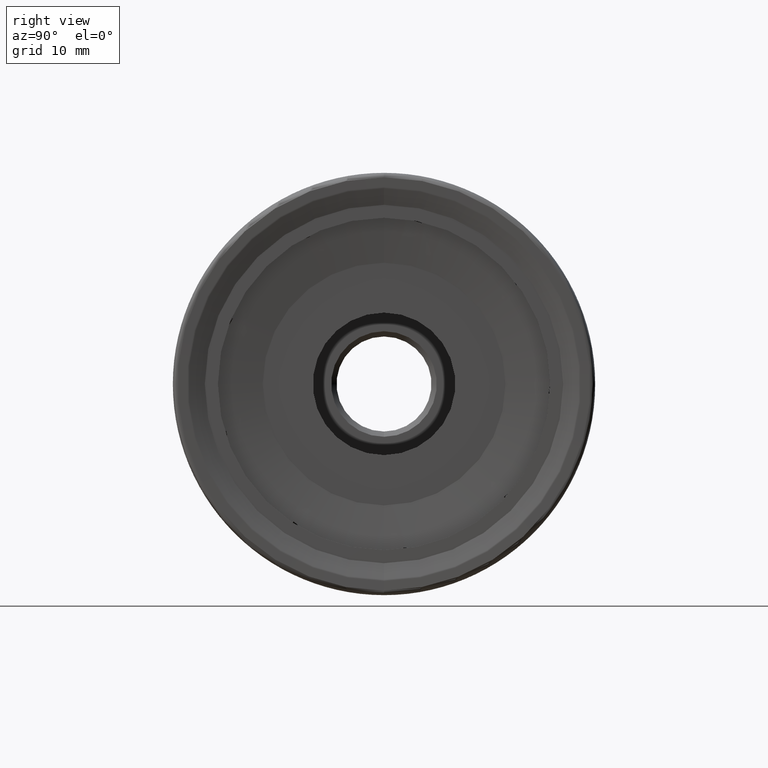
[diagram: clean part render]
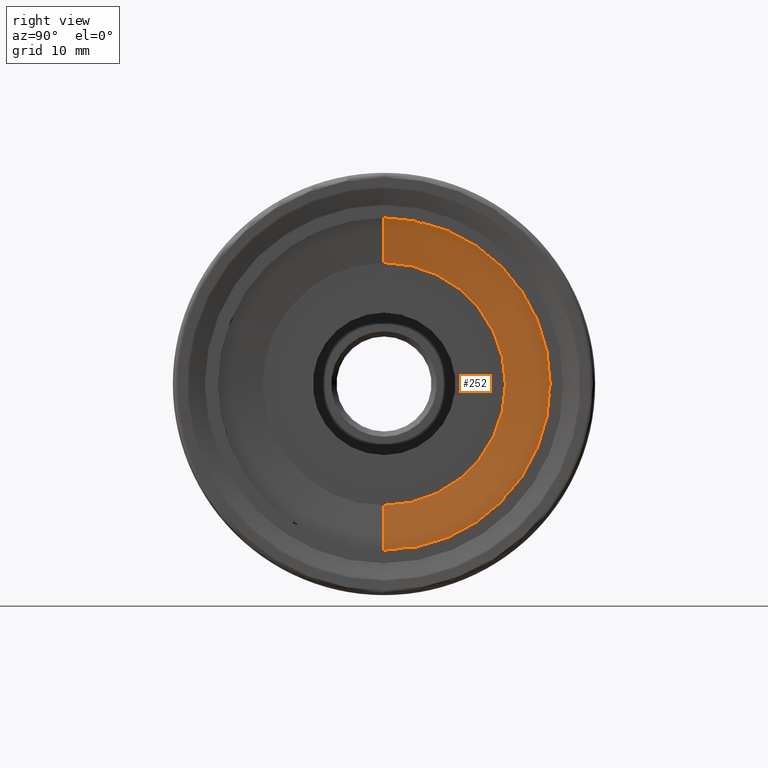
[diagram: same view with one face highlighted and labeled with its STEP entity id]
A machine part, right view. The second image highlights one B-rep face of the part: STEP entity #252.
In plain terms, the highlighted conical surface has half-angle 82.771 deg.
Its self-contained STEP definition (entity closure, byte-faithful):
#4 = EDGE_CURVE ( 'NONE', #704, #718, #2358, .T. ) ;
#14 = EDGE_CURVE ( 'NONE', #662, #681, #8604, .T. ) ;
#26 = EDGE_CURVE ( 'NONE', #591, #700, #8588, .T. ) ;
#39 = EDGE_CURVE ( 'NONE', #544, #767, #8578, .T. ) ;
#53 = EDGE_CURVE ( 'NONE', #682, #724, #8566, .T. ) ;
#252 = ADVANCED_FACE ( 'NONE', ( #3658 ), #8415, .F. ) ;
#544 = VERTEX_POINT ( 'NONE', #5672 ) ;
#591 = VERTEX_POINT ( 'NONE', #5719 ) ;
#615 = VERTEX_POINT ( 'NONE', #5743 ) ;
#662 = VERTEX_POINT ( 'NONE', #5790 ) ;
#681 = VERTEX_POINT ( 'NONE', #5809 ) ;
#682 = VERTEX_POINT ( 'NONE', #5810 ) ;
#700 = VERTEX_POINT ( 'NONE', #5828 ) ;
#704 = VERTEX_POINT ( 'NONE', #5832 ) ;
#711 = VERTEX_POINT ( 'NONE', #5839 ) ;
#718 = VERTEX_POINT ( 'NONE', #5846 ) ;
#724 = VERTEX_POINT ( 'NONE', #5852 ) ;
#767 = VERTEX_POINT ( 'NONE', #5895 ) ;
#1250 = EDGE_LOOP ( 'NONE', ( #2000, #2001, #2002, #2003, #2004, #2005, #2006, #2007, #2008, #2009, #2010, #2011, #2012, #2013, #2014, #2015, #2016, #2017, #2018, #2019, #2020, #2021, #2022, #2023 ) ) ;
#1312 = VERTEX_POINT ( 'NONE', #5977 ) ;
#1313 = VERTEX_POINT ( 'NONE', #5978 ) ;
#1316 = VERTEX_POINT ( 'NONE', #5981 ) ;
#1317 = VERTEX_POINT ( 'NONE', #5982 ) ;
#1320 = VERTEX_POINT ( 'NONE', #5985 ) ;
#1323 = VERTEX_POINT ( 'NONE', #5988 ) ;
#1324 = VERTEX_POINT ( 'NONE', #5989 ) ;
#1326 = VERTEX_POINT ( 'NONE', #5991 ) ;
#1327 = VERTEX_POINT ( 'NONE', #5992 ) ;
#1328 = VERTEX_POINT ( 'NONE', #5993 ) ;
#1330 = VERTEX_POINT ( 'NONE', #5995 ) ;
#1332 = VERTEX_POINT ( 'NONE', #5997 ) ;
#2000 = ORIENTED_EDGE ( 'NONE', *, *, #9112, .F. ) ;
#2001 = ORIENTED_EDGE ( 'NONE', *, *, #8838, .F. ) ;
#2002 = ORIENTED_EDGE ( 'NONE', *, *, #4, .T. ) ;
#2003 = ORIENTED_EDGE ( 'NONE', *, *, #8839, .T. ) ;
#2004 = ORIENTED_EDGE ( 'NONE', *, *, #8840, .T. ) ;
#2005 = ORIENTED_EDGE ( 'NONE', *, *, #8841, .F. ) ;
#2006 = ORIENTED_EDGE ( 'NONE', *, *, #8842, .F. ) ;
#2007 = ORIENTED_EDGE ( 'NONE', *, *, #8843, .T. ) ;
#2008 = ORIENTED_EDGE ( 'NONE', *, *, #8844, .T. ) ;
#2009 = ORIENTED_EDGE ( 'NONE', *, *, #8845, .F. ) ;
#2010 = ORIENTED_EDGE ( 'NONE', *, *, #14, .F. ) ;
#2011 = ORIENTED_EDGE ( 'NONE', *, *, #8846, .T. ) ;
#2012 = ORIENTED_EDGE ( 'NONE', *, *, #8847, .T. ) ;
#2013 = ORIENTED_EDGE ( 'NONE', *, *, #8857, .F. ) ;
#2014 = ORIENTED_EDGE ( 'NONE', *, *, #26, .F. ) ;
#2015 = ORIENTED_EDGE ( 'NONE', *, *, #8856, .T. ) ;
#2016 = ORIENTED_EDGE ( 'NONE', *, *, #8854, .T. ) ;
#2017 = ORIENTED_EDGE ( 'NONE', *, *, #8853, .F. ) ;
#2018 = ORIENTED_EDGE ( 'NONE', *, *, #39, .F. ) ;
#2019 = ORIENTED_EDGE ( 'NONE', *, *, #8852, .T. ) ;
#2020 = ORIENTED_EDGE ( 'NONE', *, *, #8851, .T. ) ;
#2021 = ORIENTED_EDGE ( 'NONE', *, *, #8850, .F. ) ;
#2022 = ORIENTED_EDGE ( 'NONE', *, *, #53, .F. ) ;
#2023 = ORIENTED_EDGE ( 'NONE', *, *, #8849, .T. ) ;
#2358 = LINE ( 'NONE', #2362, #8435 ) ;
#2362 = CARTESIAN_POINT ( 'NONE',  ( -1.399999999999999900, 0.0000000000000000000, -11.50000000000000000 ) ) ;
#2367 = DIRECTION ( 'NONE',  ( 0.1258414835689834800, 0.0000000000000000000, -0.9920503621354902500 ) ) ;
#2416 = CARTESIAN_POINT ( 'NONE',  ( -0.8488552613619875200, 12.44949731517011300, -9.801506608839925900 ) ) ;
#2423 = CARTESIAN_POINT ( 'NONE',  ( -0.8620831911912442100, 12.08224328538348400, -10.09940197941441700 ) ) ;
#2427 = CARTESIAN_POINT ( 'NONE',  ( -0.8726753906136145400, 11.71534002400694000, -10.39782414580880900 ) ) ;
#2428 = CARTESIAN_POINT ( 'NONE',  ( -0.8805088188421719100, 11.34874762557171300, -10.69672847795012400 ) ) ;
#2491 = CARTESIAN_POINT ( 'NONE',  ( -0.8488552613619875200, 15.83715524233373100, 0.4939929491214636900 ) ) ;
#2498 = CARTESIAN_POINT ( 'NONE',  ( -0.8620832448700910300, 15.74730542218244100, 0.02972363191380605900 ) ) ;
#2502 = CARTESIAN_POINT ( 'NONE',  ( -0.8726754228305534400, 15.65806328848870200, -0.4347219075745169500 ) ) ;
#2503 = CARTESIAN_POINT ( 'NONE',  ( -0.8805088188420583400, 15.56936958473642300, -0.8993350509091477800 ) ) ;
#2574 = CARTESIAN_POINT ( 'NONE',  ( -0.8488552613619875200, 11.81443222123524000, 10.55834771606804000 ) ) ;
#2581 = CARTESIAN_POINT ( 'NONE',  ( -0.8620831791213917600, 12.04402868925353900, 10.14494448918518900 ) ) ;
#2585 = CARTESIAN_POINT ( 'NONE',  ( -0.8726753833747484800, 12.27420506597269800, 9.731794851781256000 ) ) ;
#2586 = CARTESIAN_POINT ( 'NONE',  ( -0.8805088188421719100, 12.50491048093416100, 9.318867241447947000 ) ) ;
#2717 = CARTESIAN_POINT ( 'NONE',  ( -0.8488552613619875200, 2.263605061035074400, 15.68233424370291100 ) ) ;
#2728 = CARTESIAN_POINT ( 'NONE',  ( -0.8620832184121294300, 2.705217943276514400, 15.51323026156588400 ) ) ;
#2732 = CARTESIAN_POINT ( 'NONE',  ( -0.8726754069468271000, 3.147110764272163900, 15.34469379732144700 ) ) ;
#2733 = CARTESIAN_POINT ( 'NONE',  ( -0.8805088188421766900, 3.589264786503332200, 15.17666798385850600 ) ) ;
#3656 = DIRECTION ( 'NONE',  ( 0.0000000000000000000, 0.0000000000000000000, -1.000000000000000000 ) ) ;
#3657 = CARTESIAN_POINT ( 'NONE',  ( -1.399999999999999900, 0.0000000000000000000, 0.0000000000000000000 ) ) ;
#3658 = FACE_OUTER_BOUND ( 'NONE', #1250, .T. ) ;
#3659 = DIRECTION ( 'NONE',  ( 1.000000000000000000, -0.0000000000000000000, -0.0000000000000000000 ) ) ;
#4129 = B_SPLINE_CURVE_WITH_KNOTS ( 'NONE', 3,
 ( #6546, #6554, #6558, #6559 ),
 .UNSPECIFIED., .F., .F.,
 ( 4, 4 ),
 ( 0.0005601256753787955000, 0.001043894326399606200 ),
 .UNSPECIFIED. ) ;
#4130 = B_SPLINE_CURVE_WITH_KNOTS ( 'NONE', 3,
 ( #6549, #6550, #6555, #6556 ),
 .UNSPECIFIED., .F., .F.,
 ( 4, 4 ),
 ( 0.0002378394146276870500, 0.0004357890738079183400 ),
 .UNSPECIFIED. ) ;
#4131 = B_SPLINE_CURVE_WITH_KNOTS ( 'NONE', 3,
 ( #6560, #6561, #6566, #6567 ),
 .UNSPECIFIED., .F., .F.,
 ( 4, 4 ),
 ( 3.179906938273942700E-005, 0.0002297487285416516500 ),
 .UNSPECIFIED. ) ;
#4132 = B_SPLINE_CURVE_WITH_KNOTS ( 'NONE', 3,
 ( #6557, #6565, #6569, #6570 ),
 .UNSPECIFIED., .F., .F.,
 ( 4, 4 ),
 ( 0.0009486912233767568600, 0.001432459755010683600 ),
 .UNSPECIFIED. ) ;
#4133 = B_SPLINE_CURVE_WITH_KNOTS ( 'NONE', 3,
 ( #6574, #6575, #6580, #6581 ),
 .UNSPECIFIED., .F., .F.,
 ( 4, 4 ),
 ( 0.0001816343267137208200, 0.0003795839858895035700 ),
 .UNSPECIFIED. ) ;
#4186 = B_SPLINE_CURVE_WITH_KNOTS ( 'NONE', 3,
 ( #6512, #6513, #6518, #6519 ),
 .UNSPECIFIED., .F., .F.,
 ( 4, 4 ),
 ( 0.001042457984439241000, 0.001526226501771533900 ),
 .UNSPECIFIED. ) ;
#4204 = B_SPLINE_CURVE_WITH_KNOTS ( 'NONE', 3,
 ( #6508, #6517, #6522, #6523 ),
 .UNSPECIFIED., .F., .F.,
 ( 4, 4 ),
 ( 0.0001356340101670071400, 0.0003335836693383912300 ),
 .UNSPECIFIED. ) ;
#4207 = B_SPLINE_CURVE_WITH_KNOTS ( 'NONE', 3,
 ( #6538, #6539, #6544, #6545 ),
 .UNSPECIFIED., .F., .F.,
 ( 4, 4 ),
 ( 0.001066623842280526200, 0.001550392355842819200 ),
 .UNSPECIFIED. ) ;
#4208 = B_SPLINE_CURVE_WITH_KNOTS ( 'NONE', 3,
 ( #6524, #6532, #6536, #6537 ),
 .UNSPECIFIED., .F., .F.,
 ( 4, 4 ),
 ( 8.571788324330640400E-006, 0.0002065214474799717900 ),
 .UNSPECIFIED. ) ;
#4211 = B_SPLINE_CURVE_WITH_KNOTS ( 'NONE', 3,
 ( #6527, #6528, #6533, #6534 ),
 .UNSPECIFIED., .F., .F.,
 ( 4, 4 ),
 ( 0.0008968093244845858300, 0.001380577863786369500 ),
 .UNSPECIFIED. ) ;
#4218 = B_SPLINE_CURVE_WITH_KNOTS ( 'NONE', 3,
 ( #6521, #6520, #6525, #6526 ),
 .UNSPECIFIED., .F., .F.,
 ( 4, 4 ),
 ( 0.001461290830863568100, 0.002880461323899025600 ),
 .UNSPECIFIED. ) ;
#4959 = CIRCLE ( 'NONE', #4966, 15.84485768959634900 ) ;
#4961 = CIRCLE ( 'NONE', #4964, 11.50000000000000000 ) ;
#4964 = AXIS2_PLACEMENT_3D ( 'NONE', #6509, #6510, #6511 ) ;
#4965 = CIRCLE ( 'NONE', #4970, 15.84485768959634900 ) ;
#4966 = AXIS2_PLACEMENT_3D ( 'NONE', #6514, #6515, #6516 ) ;
#4967 = CIRCLE ( 'NONE', #4968, 15.84485768959634900 ) ;
#4968 = AXIS2_PLACEMENT_3D ( 'NONE', #6529, #6530, #6531 ) ;
#4969 = CIRCLE ( 'NONE', #4972, 15.84485768959634900 ) ;
#4970 = AXIS2_PLACEMENT_3D ( 'NONE', #6540, #6541, #6542 ) ;
#4971 = CIRCLE ( 'NONE', #4973, 15.84485768959634900 ) ;
#4972 = AXIS2_PLACEMENT_3D ( 'NONE', #6551, #6552, #6553 ) ;
#4973 = AXIS2_PLACEMENT_3D ( 'NONE', #6562, #6563, #6564 ) ;
#4974 = CIRCLE ( 'NONE', #4976, 15.84485768959634900 ) ;
#4976 = AXIS2_PLACEMENT_3D ( 'NONE', #6576, #6577, #6578 ) ;
#5239 = VECTOR ( 'NONE', #8016, 1000.000000000000000 ) ;
#5672 = CARTESIAN_POINT ( 'NONE',  ( -0.8488552613619875200, 11.81443222123524000, 10.55834771606804000 ) ) ;
#5719 = CARTESIAN_POINT ( 'NONE',  ( -0.8488552613619875200, 15.83715524233373100, 0.4939929491214636900 ) ) ;
#5743 = CARTESIAN_POINT ( 'NONE',  ( -1.399999999999999900, 1.674389622135306700E-015, 11.50000000000000000 ) ) ;
#5790 = CARTESIAN_POINT ( 'NONE',  ( -0.8488552613619875200, 12.44949731517011300, -9.801506608839925900 ) ) ;
#5809 = CARTESIAN_POINT ( 'NONE',  ( -0.8805088188421719100, 11.34874762557171300, -10.69672847795012400 ) ) ;
#5810 = CARTESIAN_POINT ( 'NONE',  ( -0.8488552613619875200, 2.263605061035074400, 15.68233424370291100 ) ) ;
#5828 = CARTESIAN_POINT ( 'NONE',  ( -0.8805088188420583400, 15.56936958473642300, -0.8993350509091477800 ) ) ;
#5832 = CARTESIAN_POINT ( 'NONE',  ( -1.399999999999999900, 0.0000000000000000000, -11.50000000000000000 ) ) ;
#5839 = CARTESIAN_POINT ( 'NONE',  ( -0.8488552613619875200, 1.940435425250949300E-015, 15.84485768959634900 ) ) ;
#5846 = CARTESIAN_POINT ( 'NONE',  ( -0.8488552613619875200, 0.0000000000000000000, -15.84485768959634900 ) ) ;
#5852 = CARTESIAN_POINT ( 'NONE',  ( -0.8805088188421766900, 3.589264786503332200, 15.17666798385850600 ) ) ;
#5895 = CARTESIAN_POINT ( 'NONE',  ( -0.8805088188421719100, 12.50491048093416100, 9.318867241447947000 ) ) ;
#5977 = CARTESIAN_POINT ( 'NONE',  ( -0.8488552613614519500, 1.347694638152021800, -15.78743913260964900 ) ) ;
#5978 = CARTESIAN_POINT ( 'NONE',  ( -0.8488552613745772300, 4.133203488347942500, 15.29627876731861500 ) ) ;
#5981 = CARTESIAN_POINT ( 'NONE',  ( -0.8488552613614374100, 15.78161717596888600, -1.414239907060304900 ) ) ;
#5982 = CARTESIAN_POINT ( 'NONE',  ( -0.8488552613619875200, 3.236581233487831000, -15.51077229291291500 ) ) ;
#5985 = CARTESIAN_POINT ( 'NONE',  ( -0.8805088188420583400, 1.817920525121612800, -15.48900376926323800 ) ) ;
#5988 = CARTESIAN_POINT ( 'NONE',  ( -0.8557283008301790300, 1.820525062516737500, -15.68537894560742200 ) ) ;
#5989 = CARTESIAN_POINT ( 'NONE',  ( -0.8557283008301783700, 11.47697034717421400, -10.84548642618855400 ) ) ;
#5991 = CARTESIAN_POINT ( 'NONE',  ( -0.8488552613751853000, 11.18036425169209700, -11.22759860357956900 ) ) ;
#5992 = CARTESIAN_POINT ( 'NONE',  ( -0.8488552613761042300, 12.99847603047359400, 9.060857359478951900 ) ) ;
#5993 = CARTESIAN_POINT ( 'NONE',  ( -0.8557283008301790300, 15.76321365407163800, -0.9308702738006107100 ) ) ;
#5995 = CARTESIAN_POINT ( 'NONE',  ( -0.8557283008301790300, 12.67367410362332000, 9.419310425169344500 ) ) ;
#5997 = CARTESIAN_POINT ( 'NONE',  ( -0.8557283008301783700, 3.653981587891411500, 15.36209109222787300 ) ) ;
#6508 = CARTESIAN_POINT ( 'NONE',  ( -0.8805088188420583400, 1.817920525121612800, -15.48900376926323800 ) ) ;
#6509 = CARTESIAN_POINT ( 'NONE',  ( -1.399999999999999900, 0.0000000000000000000, 0.0000000000000000000 ) ) ;
#6510 = DIRECTION ( 'NONE',  ( 1.000000000000000000, -0.0000000000000000000, -0.0000000000000000000 ) ) ;
#6511 = DIRECTION ( 'NONE',  ( 0.0000000000000000000, 0.0000000000000000000, -1.000000000000000000 ) ) ;
#6512 = CARTESIAN_POINT ( 'NONE',  ( -0.8488552613614519500, 1.347694638152021800, -15.78743913260964900 ) ) ;
#6513 = CARTESIAN_POINT ( 'NONE',  ( -0.8514536858938203100, 1.505301610695441300, -15.75342626696552600 ) ) ;
#6514 = CARTESIAN_POINT ( 'NONE',  ( -0.8488552613619875200, 0.0000000000000000000, 0.0000000000000000000 ) ) ;
#6515 = DIRECTION ( 'NONE',  ( 1.000000000000000000, -0.0000000000000000000, -0.0000000000000000000 ) ) ;
#6516 = DIRECTION ( 'NONE',  ( 0.0000000000000000000, 0.0000000000000000000, 1.000000000000000000 ) ) ;
#6517 = CARTESIAN_POINT ( 'NONE',  ( -0.8722491902431134300, 1.818788647069082600, -15.55446223079030500 ) ) ;
#6518 = CARTESIAN_POINT ( 'NONE',  ( -0.8537457688115713800, 1.662911741122844900, -15.71940622967523300 ) ) ;
#6519 = CARTESIAN_POINT ( 'NONE',  ( -0.8557283008301790300, 1.820525062516737500, -15.68537894560742200 ) ) ;
#6520 = CARTESIAN_POINT ( 'NONE',  ( -0.8620835238835228300, 2.763752979885171000, -15.50290684840126500 ) ) ;
#6521 = CARTESIAN_POINT ( 'NONE',  ( -0.8488552613619875200, 3.236581233487831000, -15.51077229291291500 ) ) ;
#6522 = CARTESIAN_POINT ( 'NONE',  ( -0.8639890108306493800, 1.819656826909386900, -15.61992062204947400 ) ) ;
#6523 = CARTESIAN_POINT ( 'NONE',  ( -0.8557283008301790300, 1.820525062516737500, -15.68537894560742200 ) ) ;
#6524 = CARTESIAN_POINT ( 'NONE',  ( -0.8805088188421719100, 11.34874762557171300, -10.69672847795012400 ) ) ;
#6525 = CARTESIAN_POINT ( 'NONE',  ( -0.8726755902599392400, 2.290866541989548200, -15.49567064820215700 ) ) ;
#6526 = CARTESIAN_POINT ( 'NONE',  ( -0.8805088188420583400, 1.817920525121612800, -15.48900376926323800 ) ) ;
#6527 = CARTESIAN_POINT ( 'NONE',  ( -0.8488552613751853000, 11.18036425169209700, -11.22759860357956900 ) ) ;
#6528 = CARTESIAN_POINT ( 'NONE',  ( -0.8514536861829846700, 11.27923515960930700, -11.10023541352458700 ) ) ;
#6529 = CARTESIAN_POINT ( 'NONE',  ( -0.8488552613619875200, 0.0000000000000000000, 0.0000000000000000000 ) ) ;
#6530 = DIRECTION ( 'NONE',  ( 1.000000000000000000, -0.0000000000000000000, -0.0000000000000000000 ) ) ;
#6531 = DIRECTION ( 'NONE',  ( 0.0000000000000000000, 0.0000000000000000000, 1.000000000000000000 ) ) ;
#6532 = CARTESIAN_POINT ( 'NONE',  ( -0.8722491902431153100, 11.39148853358426900, -10.74631455062651500 ) ) ;
#6533 = CARTESIAN_POINT ( 'NONE',  ( -0.8537457690330017000, 11.37810386579145900, -10.97286471394965400 ) ) ;
#6534 = CARTESIAN_POINT ( 'NONE',  ( -0.8557283008301783700, 11.47697034717421400, -10.84548642618855400 ) ) ;
#6536 = CARTESIAN_POINT ( 'NONE',  ( -0.8639890108306489400, 11.43422944077797800, -10.79590053226179000 ) ) ;
#6537 = CARTESIAN_POINT ( 'NONE',  ( -0.8557283008301783700, 11.47697034717421400, -10.84548642618855400 ) ) ;
#6538 = CARTESIAN_POINT ( 'NONE',  ( -0.8488552613614374100, 15.78161717596888600, -1.414239907060304900 ) ) ;
#6539 = CARTESIAN_POINT ( 'NONE',  ( -0.8514536858462332700, 15.77548920586238700, -1.253121069385136200 ) ) ;
#6540 = CARTESIAN_POINT ( 'NONE',  ( -0.8488552613619875200, 0.0000000000000000000, 0.0000000000000000000 ) ) ;
#6541 = DIRECTION ( 'NONE',  ( 1.000000000000000000, -0.0000000000000000000, -0.0000000000000000000 ) ) ;
#6542 = DIRECTION ( 'NONE',  ( 0.0000000000000000000, 1.776356839400250500E-015, 1.000000000000000000 ) ) ;
#6544 = CARTESIAN_POINT ( 'NONE',  ( -0.8537457687751370800, 15.76935472131234000, -1.091997873517775800 ) ) ;
#6545 = CARTESIAN_POINT ( 'NONE',  ( -0.8557283008301790300, 15.76321365407163800, -0.9308702738006107100 ) ) ;
#6546 = CARTESIAN_POINT ( 'NONE',  ( -0.8488552613745772300, 4.133203488347942500, 15.29627876731861500 ) ) ;
#6549 = CARTESIAN_POINT ( 'NONE',  ( -0.8805088188421766900, 3.589264786503332200, 15.17666798385850600 ) ) ;
#6550 = CARTESIAN_POINT ( 'NONE',  ( -0.8722491902431160900, 3.610837131108707100, 15.23847573231639200 ) ) ;
#6551 = CARTESIAN_POINT ( 'NONE',  ( -0.8488552613619875200, 0.0000000000000000000, 0.0000000000000000000 ) ) ;
#6552 = DIRECTION ( 'NONE',  ( 1.000000000000000000, -0.0000000000000000000, -0.0000000000000000000 ) ) ;
#6553 = DIRECTION ( 'NONE',  ( 0.0000000000000000000, -2.664535259100376100E-015, 1.000000000000000000 ) ) ;
#6554 = CARTESIAN_POINT ( 'NONE',  ( -0.8514536851661650400, 3.973468338803004800, 15.31822188165578600 ) ) ;
#6555 = CARTESIAN_POINT ( 'NONE',  ( -0.8639890108306489400, 3.632409397279591000, 15.30028343454457300 ) ) ;
#6556 = CARTESIAN_POINT ( 'NONE',  ( -0.8557283008301783700, 3.653981587891411500, 15.36209109222787300 ) ) ;
#6557 = CARTESIAN_POINT ( 'NONE',  ( -0.8488552613761042300, 12.99847603047359400, 9.060857359478951900 ) ) ;
#6558 = CARTESIAN_POINT ( 'NONE',  ( -0.8537457755017356900, 3.813727140444561800, 15.34015942320849000 ) ) ;
#6559 = CARTESIAN_POINT ( 'NONE',  ( -0.8557283008301783700, 3.653981587891411500, 15.36209109222787300 ) ) ;
#6560 = CARTESIAN_POINT ( 'NONE',  ( -0.8805088188421719100, 12.50491048093416100, 9.318867241447947000 ) ) ;
#6561 = CARTESIAN_POINT ( 'NONE',  ( -0.8722491902431156500, 12.56116511053550300, 9.352348287871581800 ) ) ;
#6562 = CARTESIAN_POINT ( 'NONE',  ( -0.8488552613619875200, 0.0000000000000000000, 0.0000000000000000000 ) ) ;
#6563 = DIRECTION ( 'NONE',  ( 1.000000000000000000, -0.0000000000000000000, -0.0000000000000000000 ) ) ;
#6564 = DIRECTION ( 'NONE',  ( 0.0000000000000000000, -6.217248937900877400E-015, 1.000000000000000000 ) ) ;
#6565 = CARTESIAN_POINT ( 'NONE',  ( -0.8514536860794499300, 12.89021653075626400, 9.180342577237718500 ) ) ;
#6566 = CARTESIAN_POINT ( 'NONE',  ( -0.8639890108306498300, 12.61741965033666300, 9.385829349297926800 ) ) ;
#6567 = CARTESIAN_POINT ( 'NONE',  ( -0.8557283008301790300, 12.67367410362332000, 9.419310425169344500 ) ) ;
#6569 = CARTESIAN_POINT ( 'NONE',  ( -0.8537457689537353300, 12.78194924898054400, 9.299826935469255300 ) ) ;
#6570 = CARTESIAN_POINT ( 'NONE',  ( -0.8557283008301790300, 12.67367410362332000, 9.419310425169344500 ) ) ;
#6574 = CARTESIAN_POINT ( 'NONE',  ( -0.8805088188420583400, 15.56936958473642300, -0.8993350509091477800 ) ) ;
#6575 = CARTESIAN_POINT ( 'NONE',  ( -0.8722491902431132000, 15.63398433294269700, -0.9098468602417773000 ) ) ;
#6576 = CARTESIAN_POINT ( 'NONE',  ( -0.8488552613619875200, 0.0000000000000000000, 0.0000000000000000000 ) ) ;
#6577 = DIRECTION ( 'NONE',  ( 1.000000000000000000, -0.0000000000000000000, -0.0000000000000000000 ) ) ;
#6578 = DIRECTION ( 'NONE',  ( 0.0000000000000000000, 0.0000000000000000000, 1.000000000000000000 ) ) ;
#6580 = CARTESIAN_POINT ( 'NONE',  ( -0.8639890108306482700, 15.69859902200158800, -0.9203586003592007000 ) ) ;
#6581 = CARTESIAN_POINT ( 'NONE',  ( -0.8557283008301790300, 15.76321365407163800, -0.9308702738006107100 ) ) ;
#8002 = CARTESIAN_POINT ( 'NONE',  ( -1.399999999999999900, 1.408343819019456200E-015, 11.50000000000000000 ) ) ;
#8003 = LINE ( 'NONE', #8002, #5239 ) ;
#8016 = DIRECTION ( 'NONE',  ( 0.1258414835689834800, 1.214911300582200800E-016, 0.9920503621354902500 ) ) ;
#8342 = AXIS2_PLACEMENT_3D ( 'NONE', #3657, #3659, #3656 ) ;
#8415 = CONICAL_SURFACE ( 'NONE', #8342, 11.50000000000000000, 1.444620314489962300 ) ;
#8435 = VECTOR ( 'NONE', #2367, 1000.000000000000000 ) ;
#8566 = B_SPLINE_CURVE_WITH_KNOTS ( 'NONE', 3,
 ( #2717, #2728, #2732, #2733 ),
 .UNSPECIFIED., .F., .F.,
 ( 4, 4 ),
 ( 0.0006844570853090872400, 0.002103637818232446000 ),
 .UNSPECIFIED. ) ;
#8578 = B_SPLINE_CURVE_WITH_KNOTS ( 'NONE', 3,
 ( #2574, #2581, #2585, #2586 ),
 .UNSPECIFIED., .F., .F.,
 ( 4, 4 ),
 ( 0.0006831506489729649800, 0.002102331065109598500 ),
 .UNSPECIFIED. ) ;
#8588 = B_SPLINE_CURVE_WITH_KNOTS ( 'NONE', 3,
 ( #2491, #2498, #2502, #2503 ),
 .UNSPECIFIED., .F., .F.,
 ( 4, 4 ),
 ( 0.0009327358464232448300, 0.002351916581502421200 ),
 .UNSPECIFIED. ) ;
#8604 = B_SPLINE_CURVE_WITH_KNOTS ( 'NONE', 3,
 ( #2416, #2423, #2427, #2428 ),
 .UNSPECIFIED., .F., .F.,
 ( 4, 4 ),
 ( 0.0006194132991282555600, 0.002038593852358445100 ),
 .UNSPECIFIED. ) ;
#8838 = EDGE_CURVE ( 'NONE', #704, #615, #4961, .T. ) ;
#8839 = EDGE_CURVE ( 'NONE', #718, #1312, #4959, .T. ) ;
#8840 = EDGE_CURVE ( 'NONE', #1312, #1323, #4186, .T. ) ;
#8841 = EDGE_CURVE ( 'NONE', #1320, #1323, #4204, .T. ) ;
#8842 = EDGE_CURVE ( 'NONE', #1317, #1320, #4218, .T. ) ;
#8843 = EDGE_CURVE ( 'NONE', #1317, #1326, #4967, .T. ) ;
#8844 = EDGE_CURVE ( 'NONE', #1326, #1324, #4211, .T. ) ;
#8845 = EDGE_CURVE ( 'NONE', #681, #1324, #4208, .T. ) ;
#8846 = EDGE_CURVE ( 'NONE', #662, #1316, #4965, .T. ) ;
#8847 = EDGE_CURVE ( 'NONE', #1316, #1328, #4207, .T. ) ;
#8849 = EDGE_CURVE ( 'NONE', #682, #711, #4969, .T. ) ;
#8850 = EDGE_CURVE ( 'NONE', #724, #1332, #4130, .T. ) ;
#8851 = EDGE_CURVE ( 'NONE', #1313, #1332, #4129, .T. ) ;
#8852 = EDGE_CURVE ( 'NONE', #544, #1313, #4971, .T. ) ;
#8853 = EDGE_CURVE ( 'NONE', #767, #1330, #4131, .T. ) ;
#8854 = EDGE_CURVE ( 'NONE', #1327, #1330, #4132, .T. ) ;
#8856 = EDGE_CURVE ( 'NONE', #591, #1327, #4974, .T. ) ;
#8857 = EDGE_CURVE ( 'NONE', #700, #1328, #4133, .T. ) ;
#9112 = EDGE_CURVE ( 'NONE', #615, #711, #8003, .T. ) ;